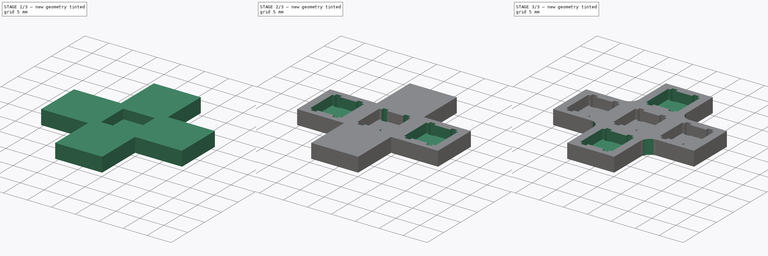
[diagram: build sequence overview — one tinted view per stage of 3, left to right]
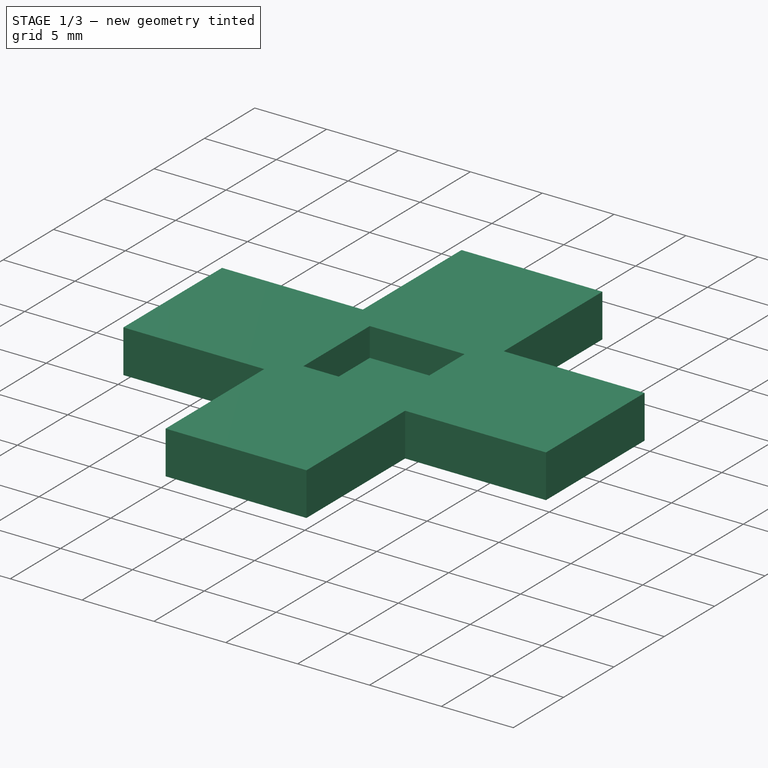
[diagram: stage 1 of 3 — iso view after this stage's code; geometry added in this stage tinted green]
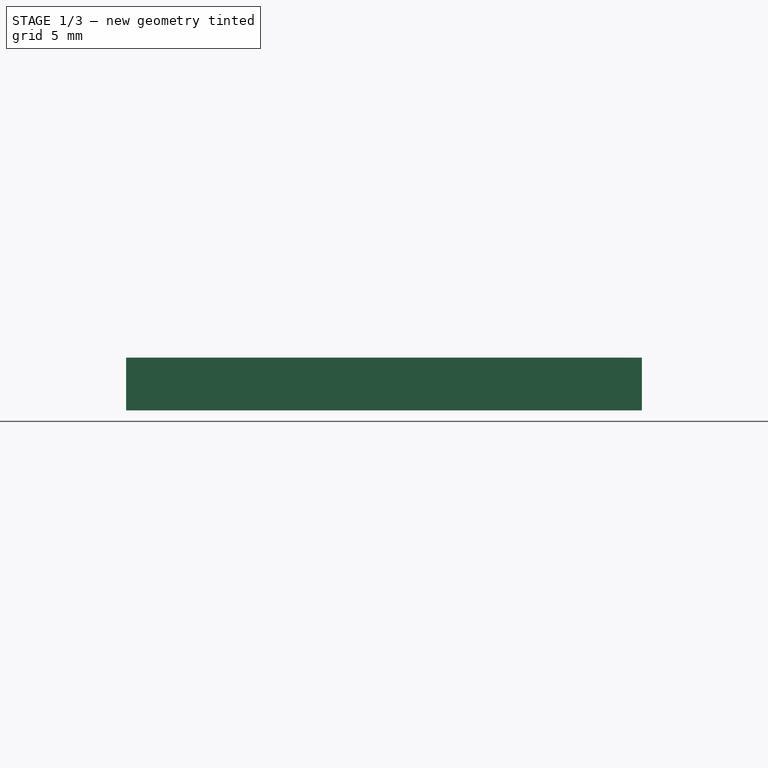
[diagram: stage 1 of 3 — front view after this stage's code; geometry added in this stage tinted green]
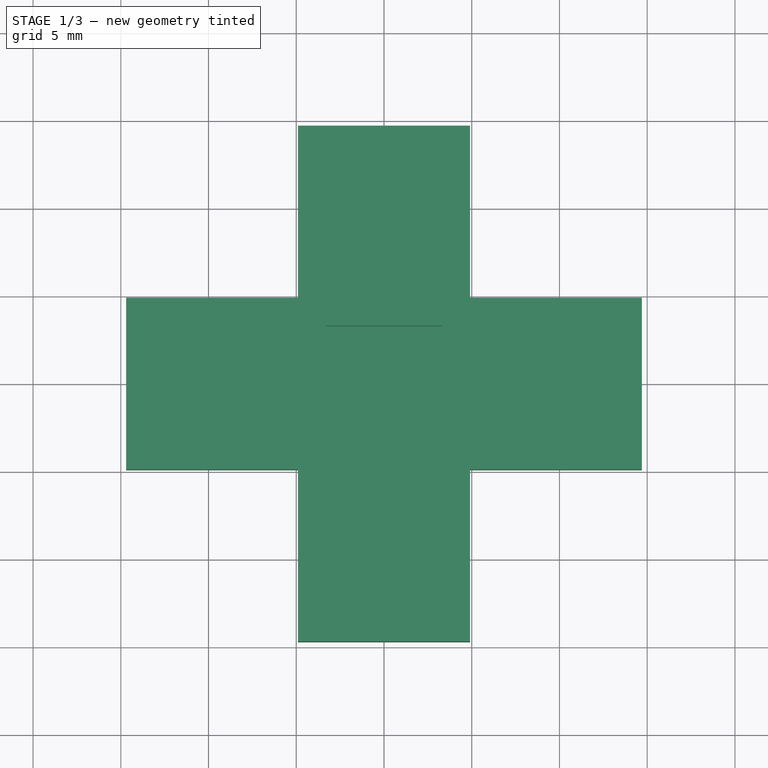
[diagram: stage 1 of 3 — top view after this stage's code; geometry added in this stage tinted green]
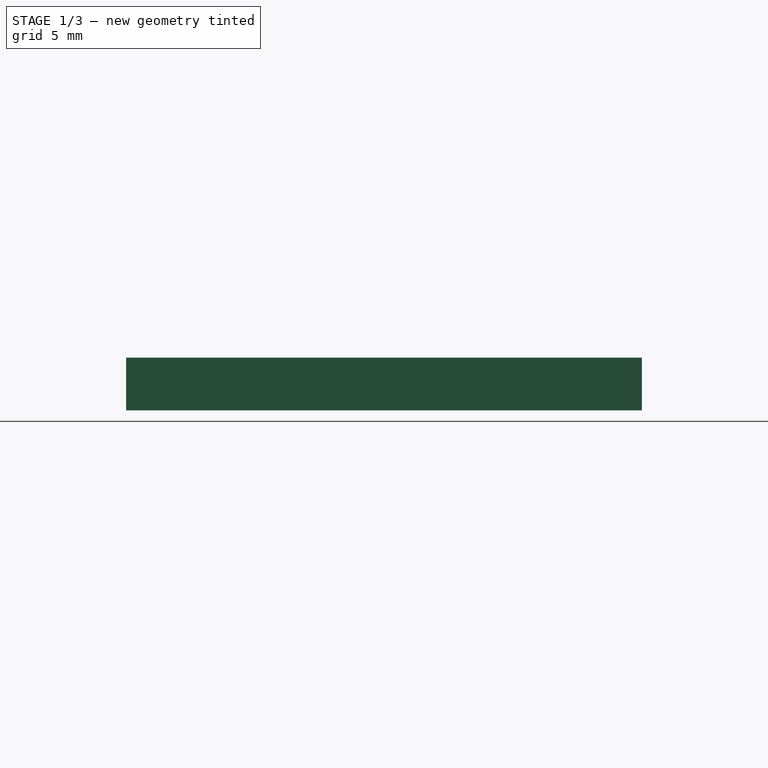
[diagram: stage 1 of 3 — right view after this stage's code; geometry added in this stage tinted green]
FCSTD DOCUMENT  (FreeCAD 0.17R13544 (Git))
Label: button_pad
License: All rights reserved
LicenseURL: http://en.wikipedia.org/wiki/All_rights_reserved
objects: PartDesign::LinearPattern×4, Sketcher::SketchObject×3, Spreadsheet::Sheet×2, PartDesign::Pocket×2, PartDesign::MultiTransform×2, PartDesign::Pad×1, PartDesign::Fillet×1, PartDesign::Body×1
note: 17 computed .brp shape members not serialized (recipe doc carries the construction recipe); baked Part::Feature solids carry a one-line shape summary decoded from their .brp

FEATURE [Spreadsheet::Sheet] Spreadsheet  label="v"
  cells = A1=Name; B1=Value (mm); A2=tol; B2(tol)=0.20000000000000001; C2=Tolerance; A3=wt; B3(wt)=1; C3=Wall thickness; A4=but_depth; B4(but_depth)=2; C4=Recess height for button; A5=but_space; B5(but_space)==c.but_width + 2 * (c.but_leg_ext + wt)
FEATURE [Spreadsheet::Sheet] Spreadsheet001  label="c"
  cells = A1=Button; A2=Name; B2=Value; C2=Notes; A3=width; B3(but_width)=6.2000000000000002; A4=depth; B4(but_depth)=3.7999999999999998; C4=Max. including legs; A5=leg_ext; B5(but_leg_ext)=0.80000000000000004; C5=How much legs stick out from button edge; A6=leg_width; B6(but_leg_width)=0.69999999999999996; A7=leg_len; B7(but_leg_len)=3; A8=leg_gap; B8(but_leg_gap)=0.5; C8=Gap between leg and button edge
FEATURE [Sketcher::SketchObject] Sketch
  MapMode = 5
  Support = -> [XY_Plane]
  expr: Constraints[41] = v.but_space
  sketch-geometry (14):
    g0: LineSegment StartX=-4.9 StartY=4.9 StartZ=0 EndX=-4.9 EndY=14.7 EndZ=0
    g1: LineSegment StartX=-4.9 StartY=14.7 StartZ=0 EndX=4.9 EndY=14.7 EndZ=0
    g2: LineSegment StartX=4.9 StartY=14.7 StartZ=0 EndX=4.9 EndY=4.9 EndZ=0
    g3: LineSegment StartX=4.9 StartY=4.9 StartZ=0 EndX=14.7 EndY=4.9 EndZ=0
    g4: LineSegment StartX=14.7 StartY=4.9 StartZ=0 EndX=14.7 EndY=-4.9 EndZ=0
    g5: LineSegment StartX=14.7 StartY=-4.9 StartZ=0 EndX=4.9 EndY=-4.9 EndZ=0
    g6: LineSegment StartX=4.9 StartY=-4.9 StartZ=0 EndX=4.9 EndY=-14.7 EndZ=0
    g7: LineSegment StartX=4.9 StartY=-14.7 StartZ=0 EndX=-4.9 EndY=-14.7 EndZ=0
    g8: LineSegment StartX=-4.9 StartY=-14.7 StartZ=0 EndX=-4.9 EndY=-4.9 EndZ=0
    g9: LineSegment StartX=-4.9 StartY=-4.9 StartZ=0 EndX=-14.7 EndY=-4.9 EndZ=0
    g10: LineSegment StartX=-14.7 StartY=-4.9 StartZ=0 EndX=-14.7 EndY=4.9 EndZ=0
    g11: LineSegment StartX=-14.7 StartY=4.9 StartZ=0 EndX=-4.9 EndY=4.9 EndZ=0
    g12: LineSegment [constr] StartX=-4.9 StartY=4.9 StartZ=0 EndX=0 EndY=0 EndZ=0
    g13: LineSegment [constr] StartX=0 StartY=0 StartZ=0 EndX=4.9 EndY=-4.9 EndZ=0
  constraints (42):
    c: Vertical(g0)
    c: Coincident(g0,g1)
    c: Horizontal(g1)
    c: Coincident(g1,g2)
    c: Vertical(g2)
    c: Coincident(g2,g3)
    c: Horizontal(g3)
    c: Coincident(g3,g4)
    c: Vertical(g4)
    c: Coincident(g4,g5)
    c: Horizontal(g5)
    c: Coincident(g5,g6)
    c: Vertical(g6)
    c: Coincident(g6,g7)
    c: Horizontal(g7)
    c: Coincident(g7,g8)
    c: Vertical(g8)
    c: Coincident(g8,g9)
    c: Horizontal(g9)
    c: Coincident(g9,g10)
    c: Vertical(g10)
    c: Coincident(g10,g11)
    c: Coincident(g11,g0)
    c: Horizontal(g11)
    c: Equal(g0,g2)
    c: Equal(g3,g5)
    c: Equal(g6,g8)
    c: Equal(g9,g11)
    c: Equal(g1,g7)
    c: Equal(g4,g10)
    c: Equal(g2,g6)
    c: Equal(g3,g11)
    c: Equal(g2,g3)
    c: Equal(g1,g4)
    c: Equal(g1,g2)
    c: Coincident(g12,g0)
    c: Coincident(g12,g-1)
    c: Coincident(g13,g-1)
    c: Coincident(g13,g5)
    c: Equal(g13,g12)
    c: Parallel(g12,g13)
    c: DistanceX(g1,g1) = 9.8
FEATURE [PartDesign::Pad] Pad
  Length = 3
  Length2 = 100
  Profile = -> Sketch
  Type = 0
  expr: Length = v.wt + v.but_depth
FEATURE [Sketcher::SketchObject] Sketch001
  MapMode = 5
  Placement = pos=(0,0,3) rot=(0,0,1;0rad)
  Support = -> [Pad]
  expr: Constraints[15] = c.but_width + v.tol * 2
  sketch-geometry (6):
    g0: LineSegment StartX=-3.3 StartY=3.3 StartZ=0 EndX=3.3 EndY=3.3 EndZ=0
    g1: LineSegment StartX=3.3 StartY=3.3 StartZ=0 EndX=3.3 EndY=-3.3 EndZ=0
    g2: LineSegment StartX=3.3 StartY=-3.3 StartZ=0 EndX=-3.3 EndY=-3.3 EndZ=0
    g3: LineSegment StartX=-3.3 StartY=-3.3 StartZ=0 EndX=-3.3 EndY=3.3 EndZ=0
    g4: LineSegment [constr] StartX=-3.3 StartY=3.3 StartZ=0 EndX=0 EndY=0 EndZ=0
    g5: LineSegment [constr] StartX=3.3 StartY=-3.3 StartZ=0 EndX=0 EndY=0 EndZ=0
  constraints (16):
    c: Coincident(g0,g1)
    c: Coincident(g1,g2)
    c: Coincident(g2,g3)
    c: Coincident(g3,g0)
    c: Horizontal(g0)
    c: Horizontal(g2)
    c: Vertical(g1)
    c: Vertical(g3)
    c: Coincident(g4,g0)
    c: Coincident(g4,g-1)
    c: Coincident(g5,g1)
    c: Coincident(g5,g-1)
    c: Equal(g4,g5)
    c: Parallel(g5,g4)
    c: Equal(g0,g1)
    c: DistanceX(g0,g0) = 6.6
FEATURE [PartDesign::Pocket] Pocket
  BaseFeature = -> Pad
  Length = 2
  Length2 = 100
  Profile = -> Sketch001
  Type = 0
  expr: Length = v.but_depth
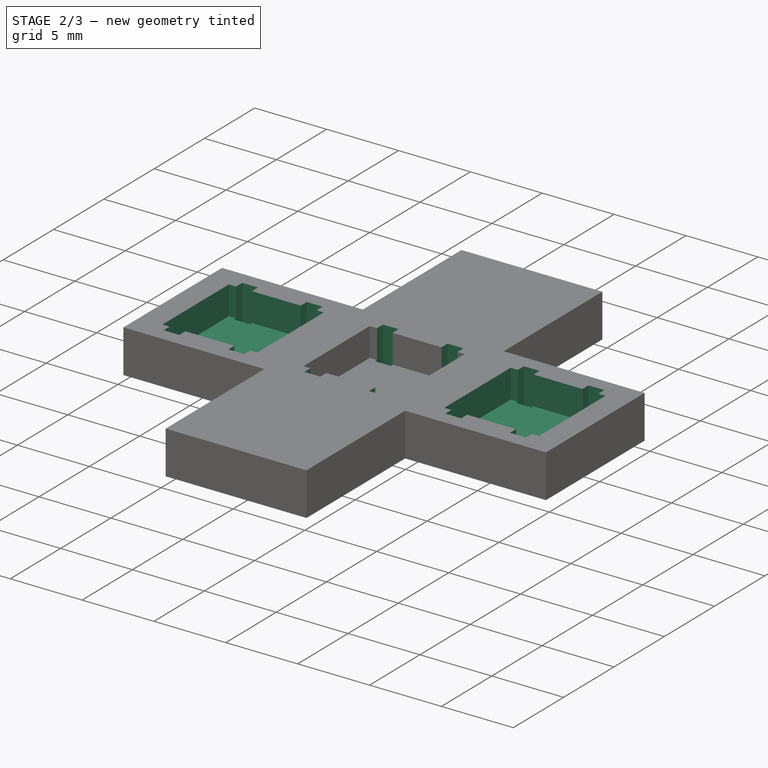
[diagram: stage 2 of 3 — iso view after this stage's code; geometry added in this stage tinted green]
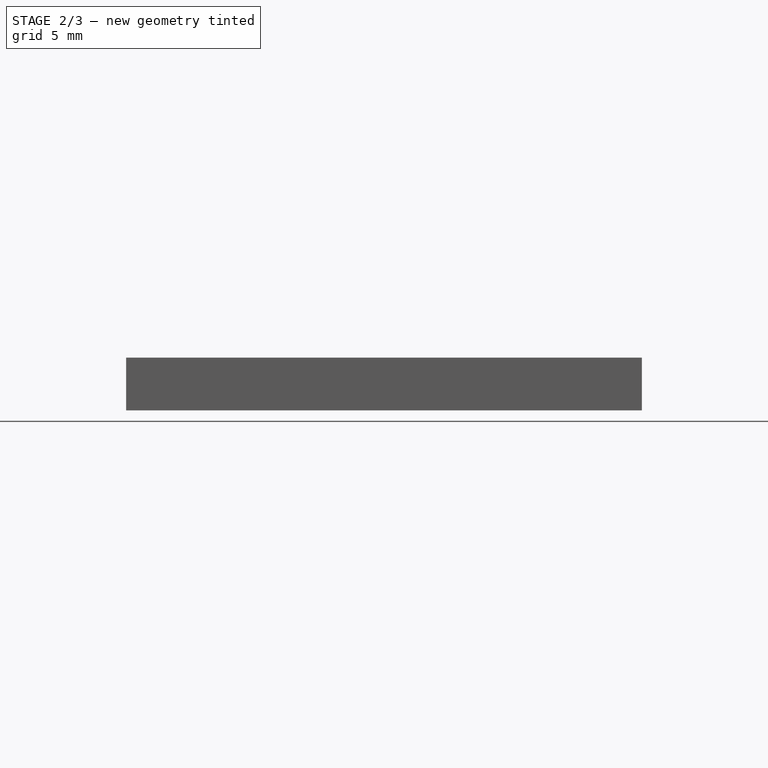
[diagram: stage 2 of 3 — front view after this stage's code; geometry added in this stage tinted green]
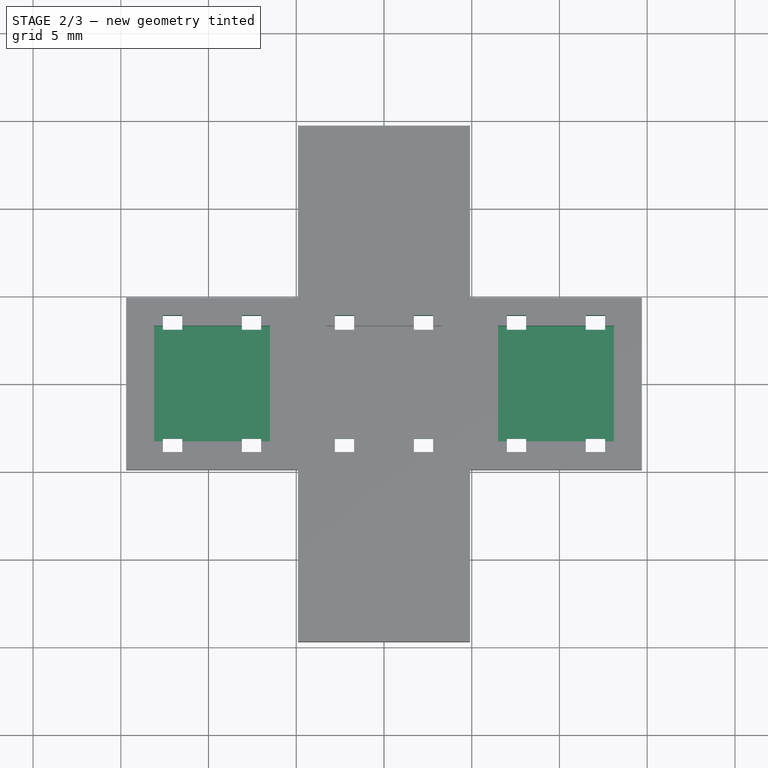
[diagram: stage 2 of 3 — top view after this stage's code; geometry added in this stage tinted green]
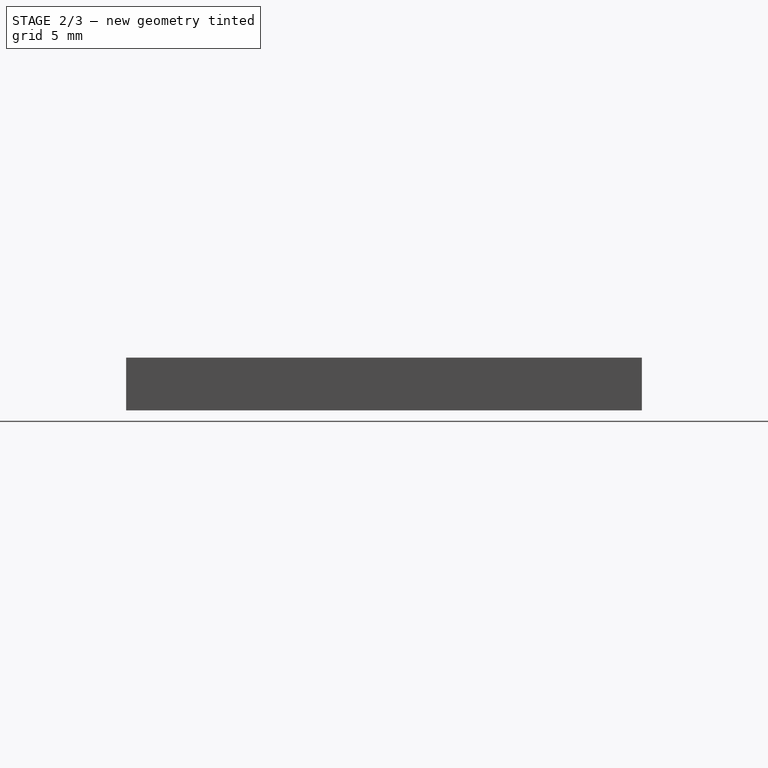
[diagram: stage 2 of 3 — right view after this stage's code; geometry added in this stage tinted green]
FEATURE [Sketcher::SketchObject] Sketch002
  MapMode = 5
  Placement = pos=(0,0,3) rot=(0,0,1;0rad)
  Support = -> [Pocket]
  expr: Constraints[70] = c.but_leg_ext
  expr: Constraints[71] = c.but_leg_gap - v.tol
  expr: Constraints[69] = c.but_leg_width + v.tol * 2
  expr: Constraints[53] = c.but_width
  sketch-geometry (26):
    g0: LineSegment StartX=-2.8 StartY=3.9 StartZ=0 EndX=-1.7 EndY=3.9 EndZ=0
    g1: LineSegment StartX=-1.7 StartY=3.9 StartZ=0 EndX=-1.7 EndY=3.1 EndZ=0
    g2: LineSegment StartX=-1.7 StartY=3.1 StartZ=0 EndX=-2.8 EndY=3.1 EndZ=0
    g3: LineSegment StartX=-2.8 StartY=3.1 StartZ=0 EndX=-2.8 EndY=3.9 EndZ=0
    g4: LineSegment StartX=1.7 StartY=3.9 StartZ=0 EndX=2.8 EndY=3.9 EndZ=0
    g5: LineSegment StartX=2.8 StartY=3.9 StartZ=0 EndX=2.8 EndY=3.1 EndZ=0
    g6: LineSegment StartX=2.8 StartY=3.1 StartZ=0 EndX=1.7 EndY=3.1 EndZ=0
    g7: LineSegment StartX=1.7 StartY=3.1 StartZ=0 EndX=1.7 EndY=3.9 EndZ=0
    g8: LineSegment StartX=1.7 StartY=-3.1 StartZ=0 EndX=2.8 EndY=-3.1 EndZ=0
    g9: LineSegment StartX=2.8 StartY=-3.1 StartZ=0 EndX=2.8 EndY=-3.9 EndZ=0
    g10: LineSegment StartX=2.8 StartY=-3.9 StartZ=0 EndX=1.7 EndY=-3.9 EndZ=0
    g11: LineSegment StartX=1.7 StartY=-3.9 StartZ=0 EndX=1.7 EndY=-3.1 EndZ=0
    g12: LineSegment StartX=-2.8 StartY=-3.1 StartZ=0 EndX=-1.7 EndY=-3.1 EndZ=0
    g13: LineSegment StartX=-1.7 StartY=-3.1 StartZ=0 EndX=-1.7 EndY=-3.9 EndZ=0
    g14: LineSegment StartX=-1.7 StartY=-3.9 StartZ=0 EndX=-2.8 EndY=-3.9 EndZ=0
    g15: LineSegment StartX=-2.8 StartY=-3.9 StartZ=0 EndX=-2.8 EndY=-3.1 EndZ=0
    g16: LineSegment [constr] StartX=-3.1 StartY=3.1 StartZ=0 EndX=3.1 EndY=3.1 EndZ=0
    g17: LineSegment [constr] StartX=3.1 StartY=3.1 StartZ=0 EndX=3.1 EndY=-3.1 EndZ=0
    g18: LineSegment [constr] StartX=3.1 StartY=-3.1 StartZ=0 EndX=-3.1 EndY=-3.1 EndZ=0
    g19: LineSegment [constr] StartX=-3.1 StartY=-3.1 StartZ=0 EndX=-3.1 EndY=3.1 EndZ=0
    g20: LineSegment [constr] StartX=-3.1 StartY=3.1 StartZ=0 EndX=0 EndY=0 EndZ=0
    g21: LineSegment [constr] StartX=0 StartY=0 StartZ=0 EndX=3.1 EndY=-3.1 EndZ=0
    g22: LineSegment [constr] StartX=-1.7 StartY=3.1 StartZ=0 EndX=-1.7 EndY=-3.1 EndZ=0
    g23: LineSegment [constr] StartX=1.7 StartY=3.1 StartZ=0 EndX=1.7 EndY=-3.1 EndZ=0
    g24: LineSegment [constr] StartX=1.7 StartY=3.1 StartZ=0 EndX=0 EndY=0 EndZ=0
    g25: LineSegment [constr] StartX=0 StartY=0 StartZ=0 EndX=-1.7 EndY=-3.1 EndZ=0
  constraints (72):
    c: Coincident(g0,g1)
    c: Coincident(g1,g2)
    c: Coincident(g2,g3)
    c: Coincident(g3,g0)
    c: Horizontal(g0)
    c: Horizontal(g2)
    c: Vertical(g1)
    c: Vertical(g3)
    c: Coincident(g4,g5)
    c: Coincident(g5,g6)
    c: Coincident(g6,g7)
    c: Coincident(g7,g4)
    c: Horizontal(g4)
    c: Horizontal(g6)
    c: Vertical(g5)
    c: Vertical(g7)
    c: Coincident(g8,g9)
    c: Coincident(g9,g10)
    c: Coincident(g10,g11)
    c: Coincident(g11,g8)
    c: Horizontal(g8)
    c: Horizontal(g10)
    c: Vertical(g9)
    c: Vertical(g11)
    c: Coincident(g12,g13)
    c: Coincident(g13,g14)
    c: Coincident(g14,g15)
    c: Coincident(g15,g12)
    c: Horizontal(g12)
    c: Horizontal(g14)
    c: Vertical(g13)
    c: Vertical(g15)
    c: Equal(g2,g12)
    c: Equal(g8,g6)
    c: Equal(g6,g2)
    c: Equal(g1,g13)
    c: Equal(g11,g7)
    c: Equal(g1,g7)
    c: Coincident(g16,g17)
    c: Coincident(g17,g18)
    c: Coincident(g18,g19)
    c: Coincident(g19,g16)
    c: Horizontal(g16)
    c: Horizontal(g18)
    c: Vertical(g17)
    c: Vertical(g19)
    c: Equal(g17,g16)
    c: Coincident(g20,g16)
    c: Coincident(g20,g-1)
    c: Coincident(g21,g-1)
    c: Coincident(g21,g17)
    c: Equal(g20,g21)
    c: Parallel(g21,g20)
    c: DistanceY(g17,g17) = 6.2
    c: PointOnObject(g1,g16)
    c: PointOnObject(g6,g16)
    c: PointOnObject(g8,g18)
    c: PointOnObject(g12,g18)
    c: Coincident(g22,g1)
    c: Coincident(g22,g12)
    c: Vertical(g22)
    c: Coincident(g23,g6)
    c: Coincident(g23,g8)
    c: Vertical(g23)
    c: Coincident(g24,g6)
    c: Coincident(g24,g-1)
    c: Coincident(g25,g-1)
    c: Coincident(g25,g12)
    c: Equal(g25,g24)
    c: DistanceX(g4,g4) = 1.1
    c: DistanceY(g5,g5) = 0.8
    c: DistanceX(g5,g16) = 0.3
FEATURE [PartDesign::Pocket] Pocket001
  BaseFeature = -> Pocket
  Length = 5
  Length2 = 100
  Profile = -> Sketch002
  Type = 1
FEATURE [PartDesign::LinearPattern] LinearPattern
  Direction = -> Sketch002 [H_Axis]
  Length = 9.8
  Occurrences = 2
  expr: Length = v.but_space
FEATURE [PartDesign::LinearPattern] LinearPattern001
  Direction = -> Sketch002 [H_Axis]
  Length = 9.8
  Occurrences = 2
  Reversed = true
  expr: Length = v.but_space
FEATURE [PartDesign::MultiTransform] MultiTransform
  BaseFeature = -> Pocket001
  Originals = -> [Pocket001,Pocket]
  Transformations = -> [LinearPattern,LinearPattern001]
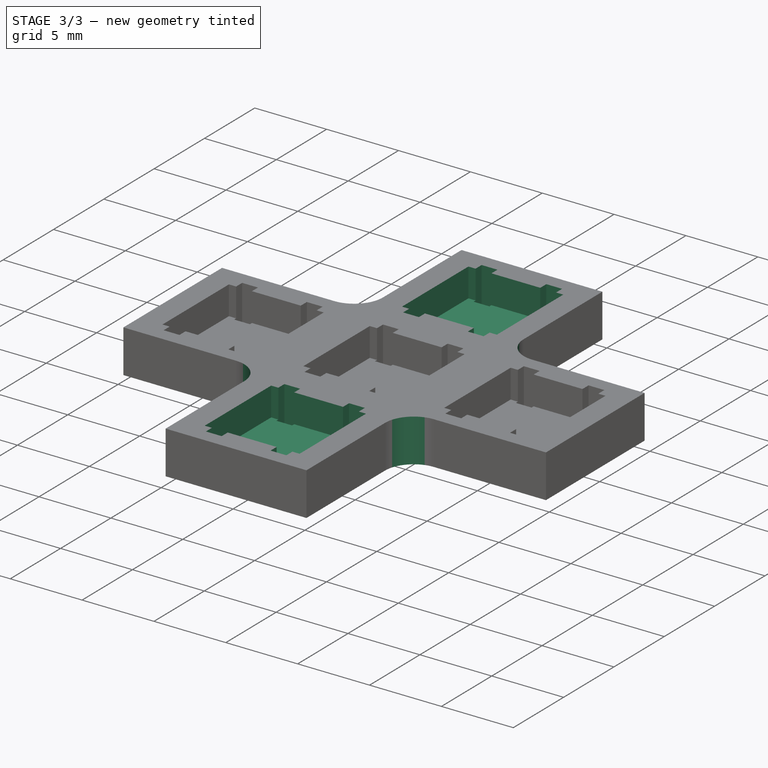
[diagram: stage 3 of 3 — iso view after this stage's code; geometry added in this stage tinted green]
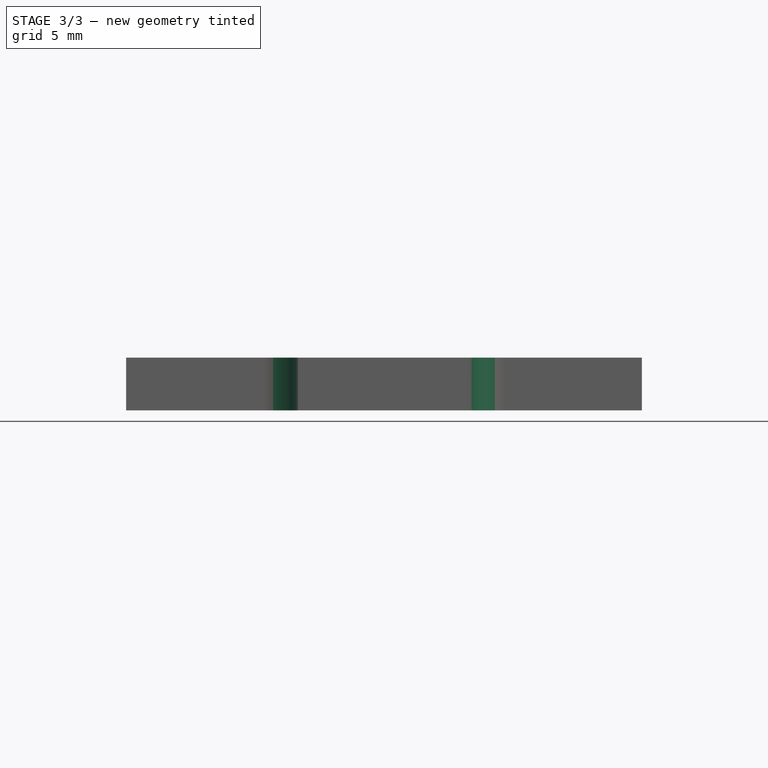
[diagram: stage 3 of 3 — front view after this stage's code; geometry added in this stage tinted green]
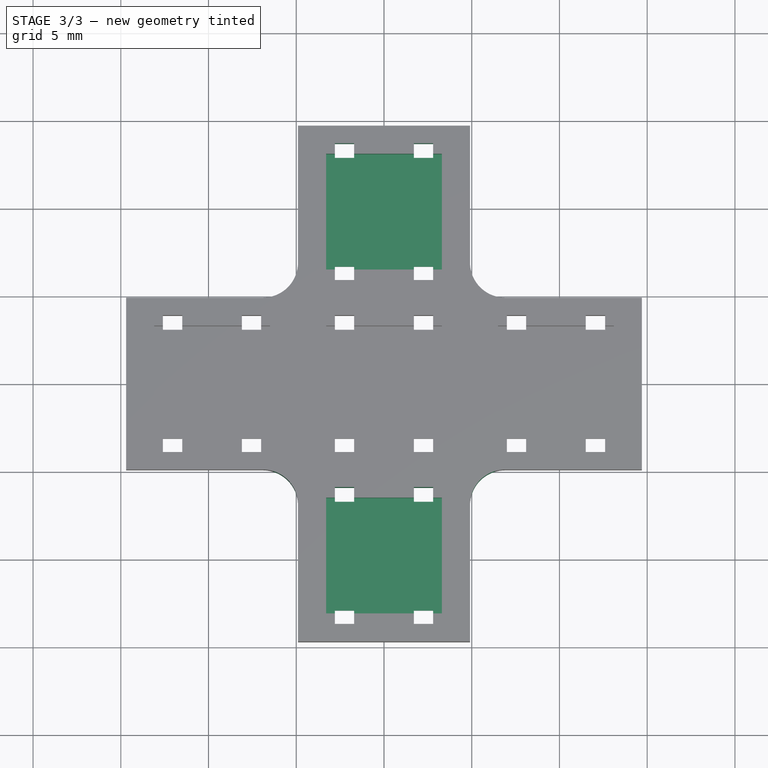
[diagram: stage 3 of 3 — top view after this stage's code; geometry added in this stage tinted green]
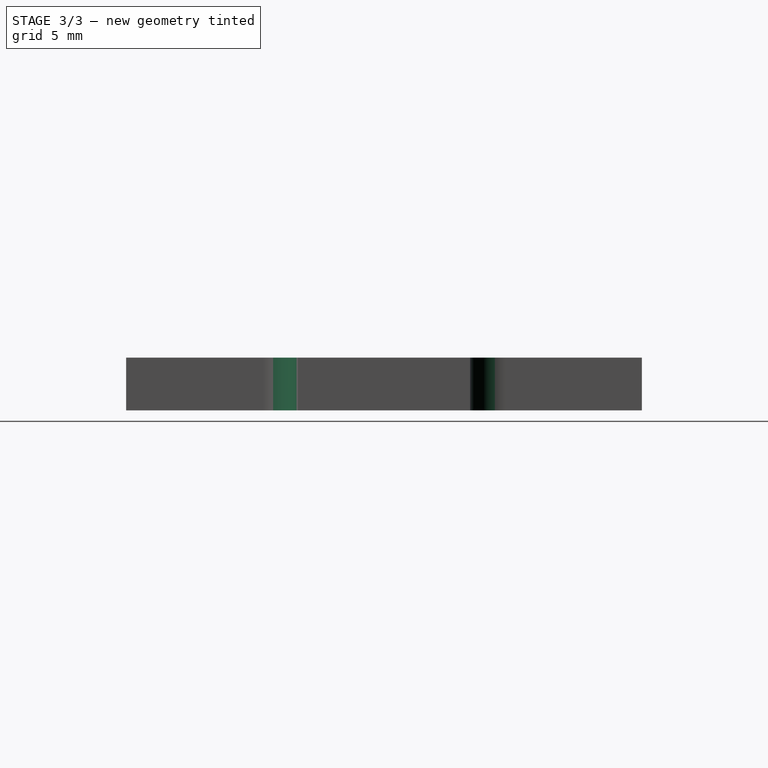
[diagram: stage 3 of 3 — right view after this stage's code; geometry added in this stage tinted green]
FEATURE [PartDesign::LinearPattern] LinearPattern002
  Direction = -> Sketch001 [V_Axis]
  Length = 9.8
  Occurrences = 2
  expr: Length = v.but_space
FEATURE [PartDesign::LinearPattern] LinearPattern003
  Direction = -> Sketch001 [V_Axis]
  Length = 9.8
  Occurrences = 2
  Reversed = true
  expr: Length = v.but_space
FEATURE [PartDesign::MultiTransform] MultiTransform001
  BaseFeature = -> MultiTransform
  Originals = -> [Pocket,Pocket001]
  Transformations = -> [LinearPattern002,LinearPattern003]
FEATURE [PartDesign::Fillet] Fillet
  Base = -> MultiTransform001 [Edge211,Edge216,Edge210,Edge1]
  BaseFeature = -> MultiTransform001
  Radius = 2
FEATURE [PartDesign::Body] Body
  Group = -> [Sketch,Pad,Sketch001,Pocket,Sketch002,Pocket001,MultiTransform,LinearPattern,LinearPattern001,MultiTransform001,LinearPattern002,LinearPattern003,Fillet]
  Origin = -> Origin
  Tip = -> Fillet
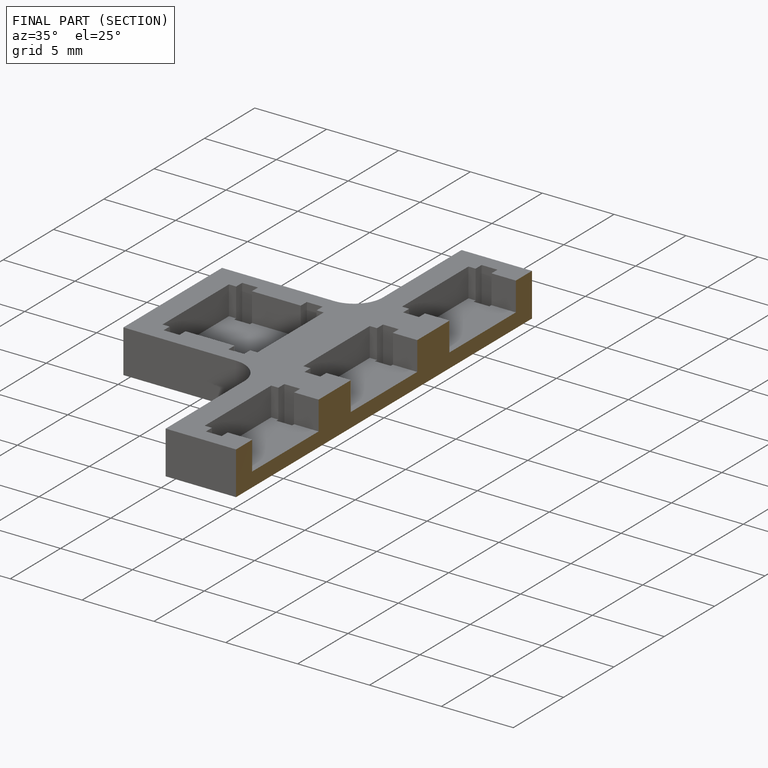
[diagram: finished part — half-section view (interior)]
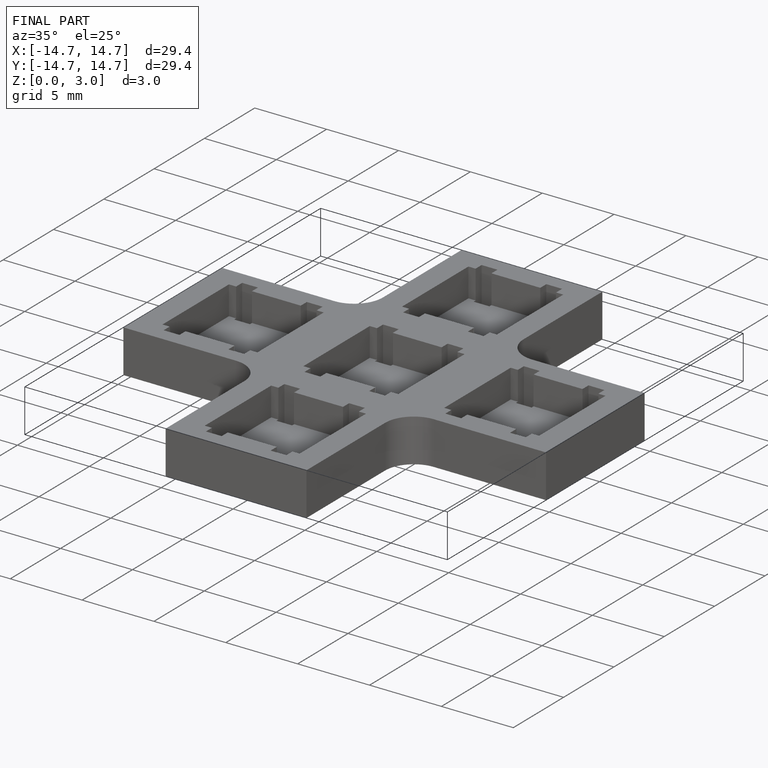
[diagram: finished part — iso view with bounding-box wireframe]
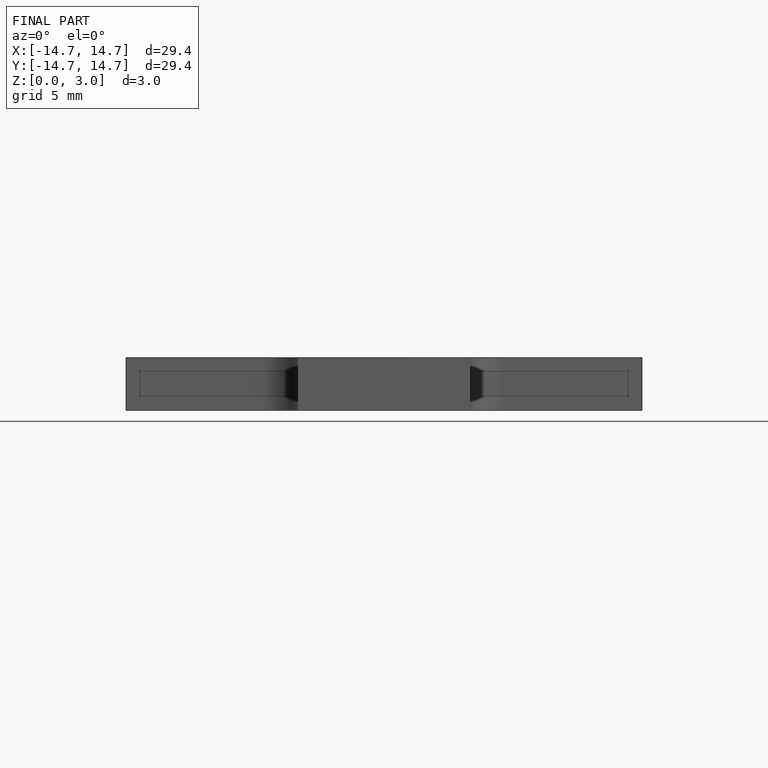
[diagram: finished part — front view with bounding-box wireframe]
